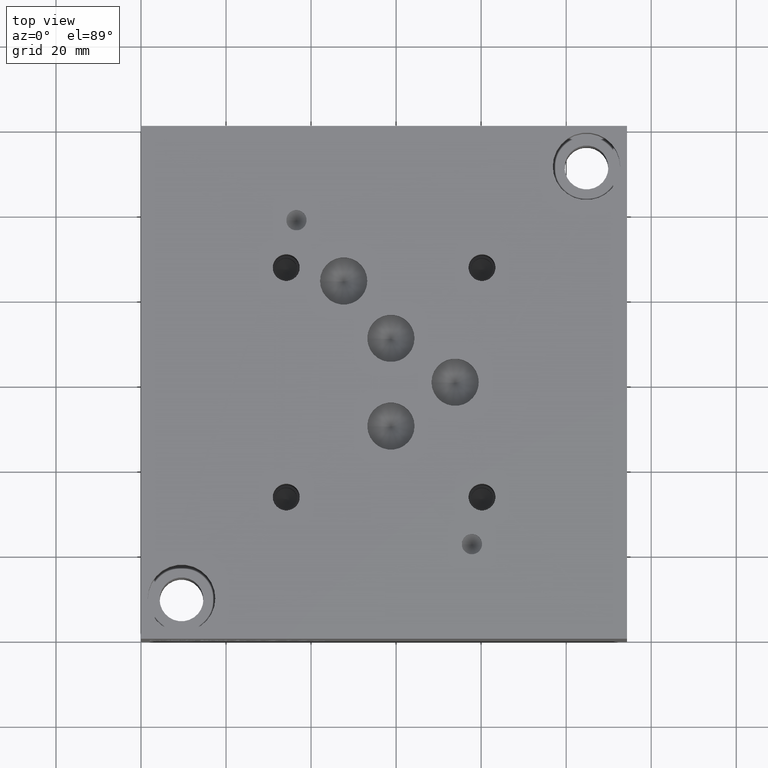
[diagram: clean part render]
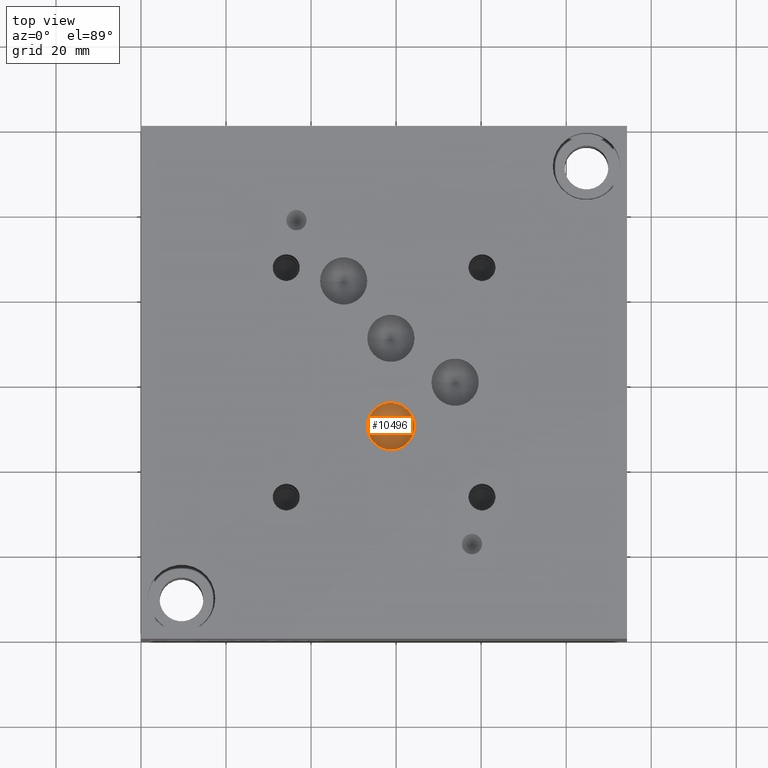
[diagram: same view with one face highlighted and labeled with its STEP entity id]
A machine part, top view. The second image highlights one B-rep face of the part: STEP entity #10496.
In plain terms, the highlighted conical surface has half-angle 60 deg.
Its self-contained STEP definition (entity closure, byte-faithful):
#42=CONICAL_SURFACE('',#11041,2.778125,1.0471975511966);
#220=CIRCLE('',#11042,5.55625);
#221=CIRCLE('',#11043,5.55625);
#1231=FACE_OUTER_BOUND('',#1822,.T.);
#1822=EDGE_LOOP('',(#9083,#9084,#9085,#9086));
#2867=LINE('',#17791,#3888);
#3888=VECTOR('',#13120,2.778125);
#4843=VERTEX_POINT('',#17787);
#4844=VERTEX_POINT('',#17788);
#4845=VERTEX_POINT('',#17790);
#6275=EDGE_CURVE('',#4843,#4844,#220,.T.);
#6276=EDGE_CURVE('',#4844,#4845,#2867,.T.);
#6277=EDGE_CURVE('',#4844,#4843,#221,.T.);
#9083=ORIENTED_EDGE('',*,*,#6275,.T.);
#9084=ORIENTED_EDGE('',*,*,#6276,.T.);
#9085=ORIENTED_EDGE('',*,*,#6276,.F.);
#9086=ORIENTED_EDGE('',*,*,#6277,.T.);
#10496=ADVANCED_FACE('',(#1231),#42,.F.);
#11041=AXIS2_PLACEMENT_3D('',#17786,#13116,#13117);
#11042=AXIS2_PLACEMENT_3D('',#17789,#13118,#13119);
#11043=AXIS2_PLACEMENT_3D('',#17792,#13121,#13122);
#13116=DIRECTION('center_axis',(0.,0.,1.));
#13117=DIRECTION('ref_axis',(1.,0.,0.));
#13118=DIRECTION('center_axis',(0.,0.,1.));
#13119=DIRECTION('ref_axis',(1.,0.,0.));
#13120=DIRECTION('',(0.866025403784439,1.06057523872491E-16,-0.5));
#13121=DIRECTION('center_axis',(0.,0.,1.));
#13122=DIRECTION('ref_axis',(1.,0.,0.));
#17786=CARTESIAN_POINT('Origin',(58.76798,50.02022,39.6381487834076));
#17787=CARTESIAN_POINT('',(64.32423,50.02022,41.2421));
#17788=CARTESIAN_POINT('',(53.21173,50.02022,41.2421));
#17789=CARTESIAN_POINT('Origin',(58.76798,50.02022,41.2421));
#17790=CARTESIAN_POINT('',(58.76798,50.02022,38.0341975668151));
#17791=CARTESIAN_POINT('',(55.989855,50.02022,39.6381487834076));
#17792=CARTESIAN_POINT('Origin',(58.76798,50.02022,41.2421));